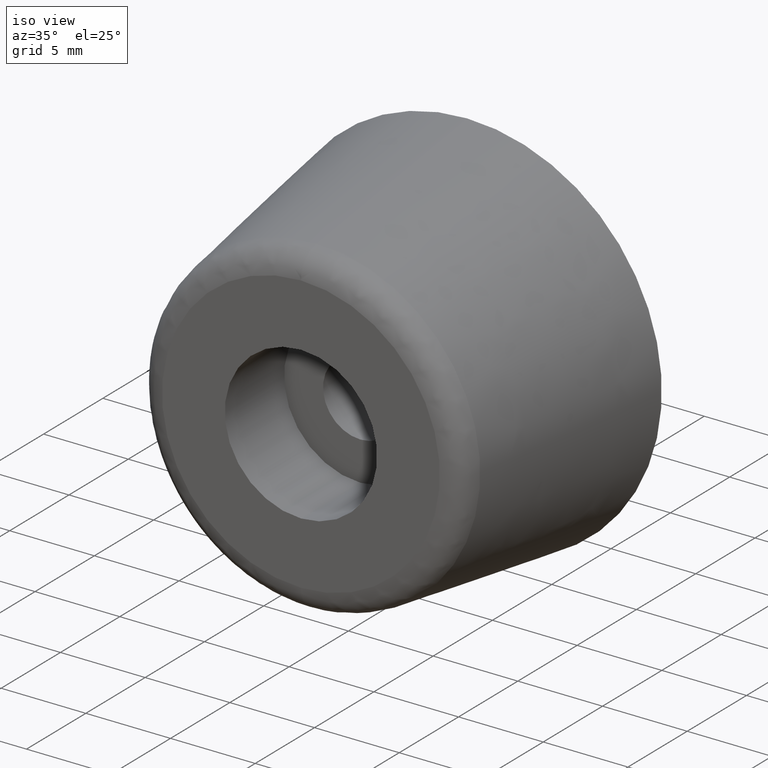
[diagram: clean part render]
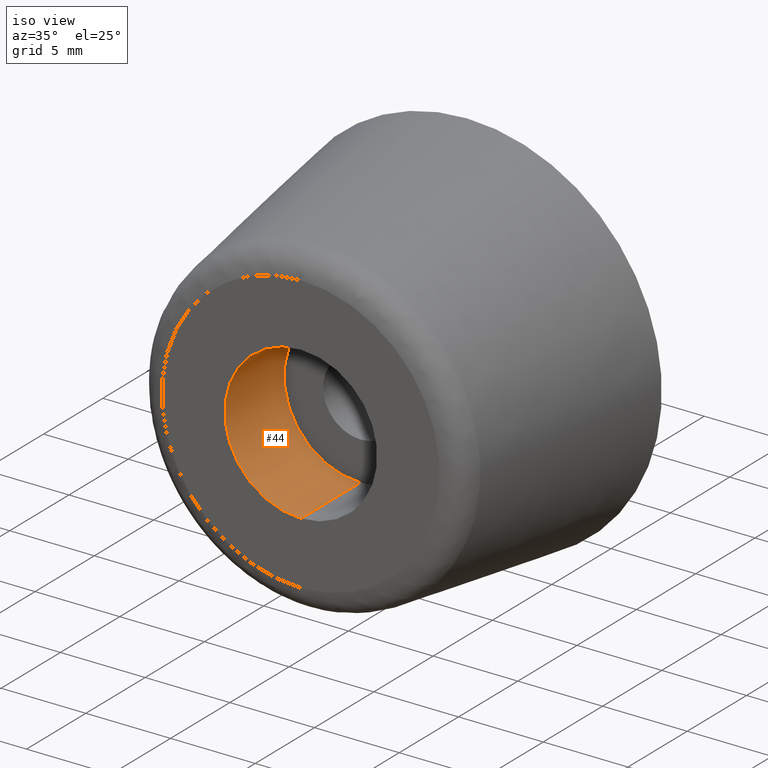
[diagram: same view with one face highlighted and labeled with its STEP entity id]
A machine part, iso view. The second image highlights one B-rep face of the part: STEP entity #44.
In plain terms, the highlighted cylindrical surface (partial cylindrical patch) has radius 4.5 mm, axis along (-0, 1, 0).
Its self-contained STEP definition (entity closure, byte-faithful):
#44=ADVANCED_FACE('',(#95),#94,.F.);
#94=CYLINDRICAL_SURFACE('',#190,4.50000000000E+00);
#95=FACE_OUTER_BOUND('',#191,.T.);
#187=CARTESIAN_POINT('',(-1.42108547152E-14,0.00000000000E+00,0.00000000000E+00));
#188=DIRECTION('',(-0.00000000000E+00,1.00000000000E+00,0.00000000000E+00));
#189=DIRECTION('',(-0.00000000000E+00,-0.00000000000E+00,1.00000000000E+00));
#190=AXIS2_PLACEMENT_3D('',#187,#188,#189);
#191=EDGE_LOOP('',(#292,#293,#294,#295));
#292=ORIENTED_EDGE('',*,*,#321,.F.);
#293=ORIENTED_EDGE('',*,*,#332,.F.);
#294=ORIENTED_EDGE('',*,*,#326,.T.);
#295=ORIENTED_EDGE('',*,*,#333,.T.);
#321=EDGE_CURVE('',#343,#342,#350,.T.);
#326=EDGE_CURVE('',#384,#385,#386,.T.);
#332=EDGE_CURVE('',#384,#343,#426,.T.);
#333=EDGE_CURVE('',#385,#342,#432,.T.);
#342=VERTEX_POINT('',#488);
#343=VERTEX_POINT('',#489);
#350=CIRCLE('',#497,4.50000000000E+00);
#384=VERTEX_POINT('',#518);
#385=VERTEX_POINT('',#519);
#386=CIRCLE('',#523,4.50000000000E+00);
#426=(BOUNDED_CURVE() B_SPLINE_CURVE(1,(#548,#549),.UNSPECIFIED.,.F.,.F.) B_SPLINE_CURVE_WITH_KNOTS((2,2),(8.33333383004E-02,9.16666664635E-01),.UNSPECIFIED.) CURVE() GEOMETRIC_REPRESENTATION_ITEM() RATIONAL_B_SPLINE_CURVE((1.00000000000E+00,1.00000000000E+00)) REPRESENTATION_ITEM('') );
#432=(BOUNDED_CURVE() B_SPLINE_CURVE(1,(#550,#551),.UNSPECIFIED.,.F.,.F.) B_SPLINE_CURVE_WITH_KNOTS((2,2),(8.33333333333E-02,9.16666666667E-01),.UNSPECIFIED.) CURVE() GEOMETRIC_REPRESENTATION_ITEM() RATIONAL_B_SPLINE_CURVE((7.50000000000E-01,7.50000000000E-01)) REPRESENTATION_ITEM('') );
#488=CARTESIAN_POINT('',(-1.42108547152E-14,-9.00000000000E+00,-4.50000000000E+00));
#489=CARTESIAN_POINT('',(-1.37667655054E-14,-9.00000000000E+00,4.50000000000E+00));
#494=CARTESIAN_POINT('',(-1.42108547152E-14,-9.00000000000E+00,0.00000000000E+00));
#495=DIRECTION('',(0.00000000000E+00,-1.00000000000E+00,-0.00000000000E+00));
#496=DIRECTION('',(-1.22460635382E-16,0.00000000000E+00,-1.00000000000E+00));
#497=AXIS2_PLACEMENT_3D('',#494,#495,#496);
#518=CARTESIAN_POINT('',(-1.37667655054E-14,-1.40000000000E+01,4.50000000000E+00));
#519=CARTESIAN_POINT('',(-1.42108547152E-14,-1.40000000000E+01,-4.50000000000E+00));
#520=CARTESIAN_POINT('',(-1.42108547152E-14,-1.40000000000E+01,0.00000000000E+00));
#521=DIRECTION('',(0.00000000000E+00,-1.00000000000E+00,-0.00000000000E+00));
#522=DIRECTION('',(-1.22460635382E-16,0.00000000000E+00,-1.00000000000E+00));
#523=AXIS2_PLACEMENT_3D('',#520,#521,#522);
#548=CARTESIAN_POINT('',(-1.42108547152E-14,-1.39999999702E+01,4.50000000000E+00));
#549=CARTESIAN_POINT('',(-1.42108547152E-14,-9.00000001219E+00,4.50000000000E+00));
#550=CARTESIAN_POINT('',(-1.43588844518E-14,-1.40000000000E+01,-4.50000000000E+00));
#551=CARTESIAN_POINT('',(-1.43588844518E-14,-9.00000000000E+00,-4.50000000000E+00));